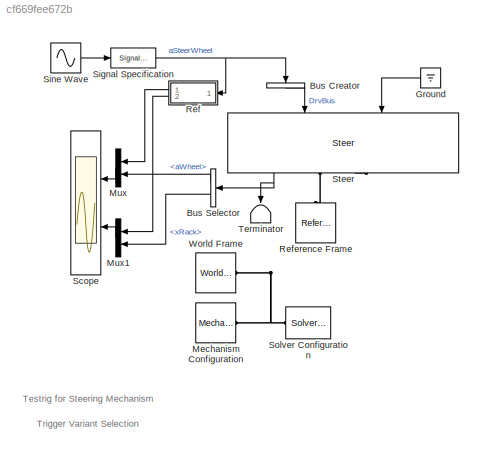
MODEL slx_cf669fee672b
KIND model
CONFIG AbsTol = auto
CONFIG EnableMultiTasking = off
CONFIG FixedStep = auto
CONFIG MaxStep = auto
CONFIG MinStep = auto
CONFIG RelTol = 1e-3
CONFIG SampleTimeConstraint = Unconstrained
CONFIG SolverName = VariableStepAuto
CONFIG StartTime = 0.0
CONFIG StopTime = 10.0
BLOCK [BusCreator] Bus Creator
  DisplayOption = bar
  InheritFromInputs = on
  Inputs = 1
  NameLocation = left
  Ports = [1, 1]
BLOCK [BusSelector] Bus Selector
  NameLocation = top
  OutputSignals = aWheel,xRack
  Ports = [1, 2]
BLOCK [Ground] Ground
  NameLocation = top
BLOCK [Reference] Mechanism Configuration  REF=sm_lib/Utilities/Mechanism
Configuration
  Ports = [0, 0, 0, 0, 0, 0, 1]
  SourceBlock = sm_lib/Utilities/Mechanism\nConfiguration
  SourceProductBaseCode = MS
  SourceType = Mechanism\nConfiguration
BLOCK [Mux] Mux
  DisplayOption = bar
  Inputs = 2
  Ports = [2, 1]
BLOCK [Mux] Mux1
  DisplayOption = bar
  Inputs = 2
  Ports = [2, 1]
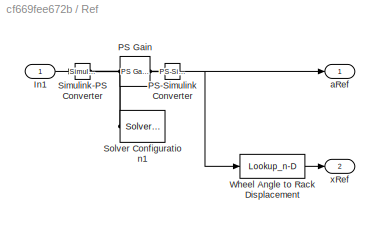
BLOCK [SubSystem] Ref
  Ports = [1, 2]
  RequestExecContextInheritance = off
BLOCK [Inport] Ref/In1
BLOCK [Reference] Ref/PS Gain  REF=fl_ps_legacy_lib/Legacy Physical
Signals/Functions/PS Gain
  Ports = [0, 0, 0, 0, 0, 1, 1]
  SourceBlock = fl_ps_legacy_lib/Legacy Physical\nSignals/Functions/PS Gain
  SourceProductBaseCode = PW,SS,VE
  SourceType = PS Gain
BLOCK [Reference] Ref/PS-Simulink Converter  REF=nesl_utility/PS-Simulink
Converter
  Ports = [0, 1, 0, 0, 0, 1]
  SourceBlock = nesl_utility/PS-Simulink\nConverter
  SourceProductBaseCode = SS,PW,VE
  SourceType = PS-Simulink\nConverter
BLOCK [Reference] Ref/Simulink-PS Converter  REF=nesl_utility/Simulink-PS
Converter
  Ports = [1, 0, 0, 0, 0, 0, 1]
  SourceBlock = nesl_utility/Simulink-PS\nConverter
  SourceProductBaseCode = SS,PW,VE
  SourceType = Simulink-PS\nConverter
BLOCK [Reference] Ref/Solver Configuration1  REF=nesl_utility/Solver
Configuration
  NameLocation = top
  Ports = [0, 0, 0, 0, 0, 0, 1]
  SourceBlock = nesl_utility/Solver\nConfiguration
  SourceProductBaseCode = SS,PW,VE
  SourceType = Solver\nConfiguration
BLOCK [Lookup_n-D] Ref/Wheel Angle to Rack Displacement
  BreakpointsForDimension1 = Vehicle.Chassis.SuspA1.Steer.Ratio_Table.aWheel.Value
  InputPortMap = u0
  InternalRulePriority = Speed
  NumberOfTableDimensions = 1
  Ports = [1, 1]
  RndMeth = Simplest
  Table = Vehicle.Chassis.SuspA1.Steer.Ratio_Table.xRack.Value
BLOCK [Outport] Ref/aRef
  VectorParamsAs1DForOutWhenUnconnected = off
BLOCK [Outport] Ref/xRef
  Port = 2
  VectorParamsAs1DForOutWhenUnconnected = off
BLOCK [Reference] Reference Frame  REF=sm_lib/Frames and
Transforms/Reference
Frame
  NameLocation = right
  Ports = [0, 0, 0, 0, 0, 0, 1]
  SourceBlock = sm_lib/Frames and\nTransforms/Reference\nFrame
  SourceProductBaseCode = MS
  SourceType = Reference\nFrame
BLOCK [Scope] Scope
  Floating = off
  NumInputPorts = 2
  Ports = [2]
  ScopeSpecificationString = Simulink.scopes.TimeScopeBlockCfg('CurrentConfiguration', extmgr.ConfigurationSet(extmgr.Configuration('Core','General UI',true),extmgr.Configuration('Core','Source UI',true),extmgr.Configuration('Sources','WiredSimulink',true),extmgr.Configuration('Visuals','Time Domain',true,'SerializedDisplays',{struct('MinYLimReal','-1.95145','MaxYLimReal','1.95145','YLabelReal','','MinYLimMag','0.00000','MaxY...<+1968ch>
BLOCK [SignalSpecification] Signal Specification
  Unit = rad
BLOCK [Sin] Sine Wave
  Amplitude = pi/2
  Frequency = pi/4
  Ports = [0, 1]
  SampleTime = 0
BLOCK [Reference] Solver Configuration  REF=nesl_utility/Solver
Configuration
  NameLocation = top
  Ports = [0, 0, 0, 0, 0, 0, 1]
  SourceBlock = nesl_utility/Solver\nConfiguration
  SourceProductBaseCode = SS,PW,VE
  SourceType = Solver\nConfiguration
BLOCK [Reference] Steer  REF=Steer_Rack_System/Steer
  AttributesFormatString = %<ActiveVariant>
  NameLocation = right
  Ports = [2, 1, 0, 0, 0, 0, 3]
  SourceBlock = Steer_Rack_System/Steer
BLOCK [Terminator] Terminator
  NameLocation = left
BLOCK [Reference] World Frame  REF=sm_lib/Frames and
Transforms/World Frame
  Ports = [0, 0, 0, 0, 0, 0, 1]
  SourceBlock = sm_lib/Frames and\nTransforms/World Frame
  SourceProductBaseCode = MS
  SourceType = World Frame
ANNOTATION (root): Trigger Variant Selection
ANNOTATION (root): Testrig for Steering Mechanism
LINE Bus Creator:1 -> Steer:1
LINE Bus Selector:1 -> Mux:2
LINE Bus Selector:2 -> Mux1:2
LINE Ground:1 -> Steer:2
LINE Mux1:1 -> Scope:2
LINE Mux:1 -> Scope:1
LINE Ref/In1:1 -> Ref/Simulink-PS Converter:1
NET Ref/PS-Simulink Converter:1 -> Ref/Wheel Angle to Rack Displacement:1, Ref/aRef:1
LINE Ref/Wheel Angle to Rack Displacement:1 -> Ref/xRef:1
LINE Ref:1 -> Mux:1
LINE Ref:2 -> Mux1:1
NET Signal Specification:1 -> Bus Creator:1, Ref:1
LINE Sine Wave:1 -> Signal Specification:1
NET Steer:1 -> Bus Selector:1, Terminator:1
PNET net1: Mechanism Configuration:RConn1 -- Solver Configuration:RConn1 -- Steer:RConn2 -- World Frame:RConn1
PNET net2: Ref/PS Gain:LConn1 -- Ref/Simulink-PS Converter:RConn1 -- Ref/Solver Configuration1:RConn1
PLINE Ref/PS Gain:RConn1 -- Ref/PS-Simulink Converter:LConn1
PLINE Reference Frame:RConn1 -- Steer:RConn1
note: NET lines group one-source signal fan-out (src -> all destinations, sorted); 1:1 wires keep LINE; PNET lines group multi-terminal physical nets as a canonical sorted terminal list (undirected conserving connections); 2-terminal nets keep the pairwise PLINE form
